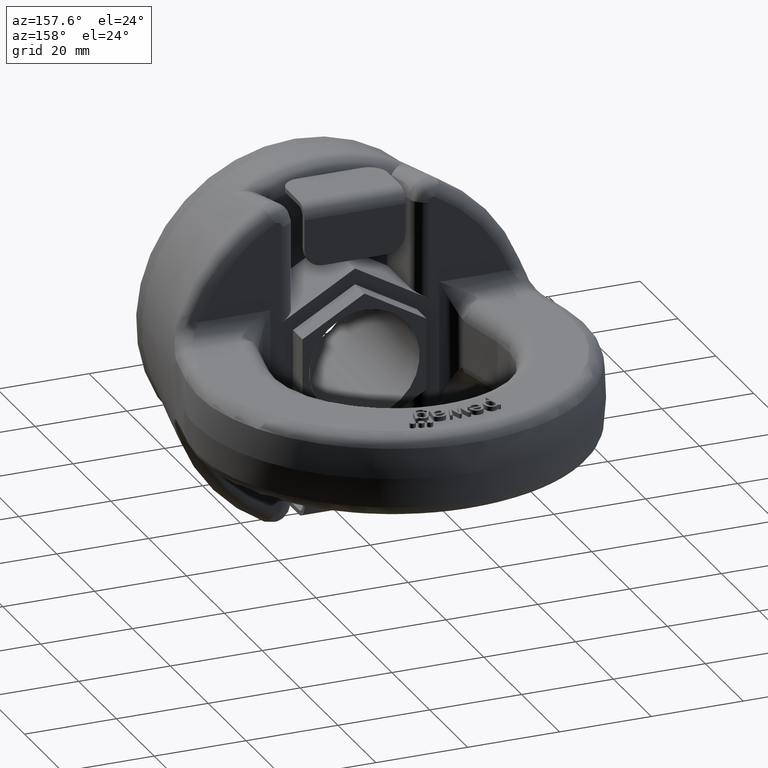
[diagram: clean part render]
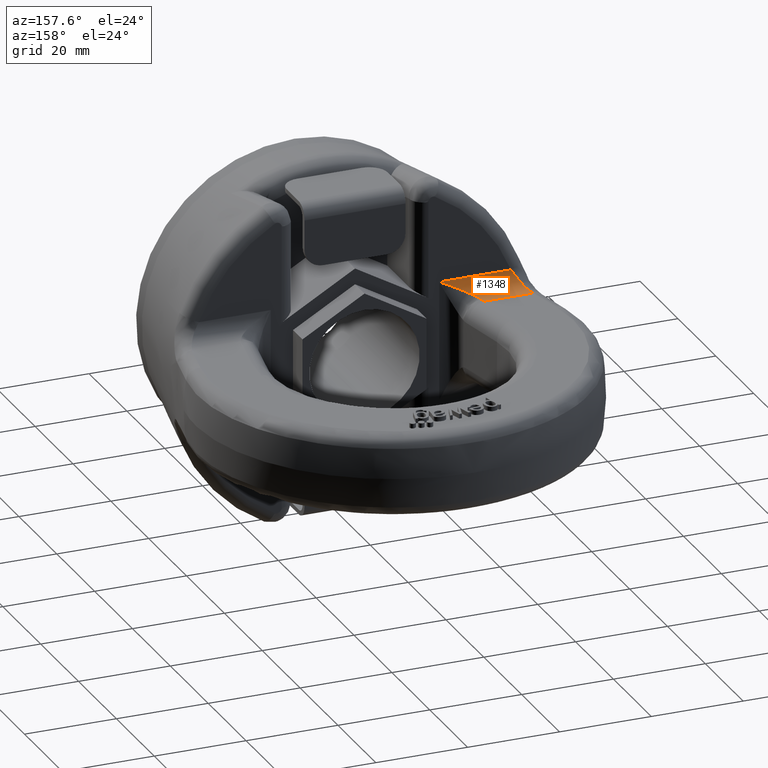
[diagram: same view with one face highlighted and labeled with its STEP entity id]
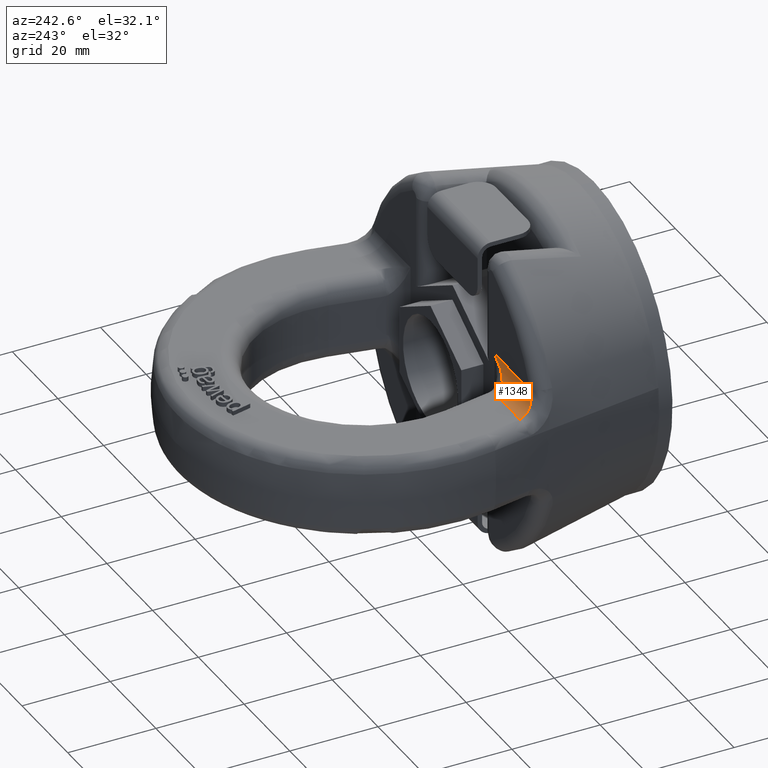
[diagram: same view with one face highlighted and labeled with its STEP entity id]
A machine part, auxiliary view. The second image highlights one B-rep face of the part: STEP entity #1348.
A second angle (auxiliary view) of the same face is appended — the face is thin or edge-on in the first view.
In plain terms, the highlighted cylindrical surface (edge-blend (fillet) strip) has radius 4 mm, axis along (-1, 0, 0).
Its self-contained STEP definition (entity closure, byte-faithful):
#1058=ELLIPSE('',#5160,8.94427190999916,4.);
#1059=ELLIPSE('',#5161,4.27624824604156,4.);
#1073=CYLINDRICAL_SURFACE('',#5162,4.);
#1123=FACE_OUTER_BOUND('',#1867,.T.);
#1348=ADVANCED_FACE('',(#1123),#1073,.F.);
#1867=EDGE_LOOP('',(#2899,#2900,#2901,#2902,#2903));
#2122=LINE('',#6418,#2392);
#2152=LINE('',#6772,#2422);
#2392=VECTOR('',#5405,1.);
#2422=VECTOR('',#5487,1.);
#2899=ORIENTED_EDGE('',*,*,#4366,.F.);
#2900=ORIENTED_EDGE('',*,*,#4413,.T.);
#2901=ORIENTED_EDGE('',*,*,#4414,.T.);
#2902=ORIENTED_EDGE('',*,*,#4292,.F.);
#2903=ORIENTED_EDGE('',*,*,#4415,.T.);
#3908=VERTEX_POINT('',#6417);
#3909=VERTEX_POINT('',#6419);
#3977=VERTEX_POINT('',#6771);
#3978=VERTEX_POINT('',#6773);
#4007=VERTEX_POINT('',#6985);
#4292=EDGE_CURVE('',#3908,#3909,#2122,.T.);
#4366=EDGE_CURVE('',#3977,#3978,#2152,.T.);
#4413=EDGE_CURVE('',#3977,#4007,#1058,.T.);
#4414=EDGE_CURVE('',#4007,#3909,#1059,.T.);
#4415=EDGE_CURVE('',#3908,#3978,#4888,.T.);
#4888=B_SPLINE_CURVE_WITH_KNOTS('',3,(#6987,#6988,#6989,#6990,#6991,#6992,
#6993,#6994,#6995,#6996,#6997,#6998,#6999,#7000,#7001,#7002),
 .UNSPECIFIED.,.F.,.F.,(4,3,3,3,3,4),(0.,0.207557435527554,0.418547779537088,
0.63726019298535,0.865579065101321,1.),.UNSPECIFIED.);
#5160=AXIS2_PLACEMENT_3D('',#6984,#5570,#5571);
#5161=AXIS2_PLACEMENT_3D('',#6986,#5572,#5573);
#5162=AXIS2_PLACEMENT_3D('',#7003,#5574,#5575);
#5405=DIRECTION('',(1.,0.,0.));
#5487=DIRECTION('',(-1.,0.,0.));
#5570=DIRECTION('',(0.447213595499958,0.,-0.894427190999916));
#5571=DIRECTION('',(-0.894427190999916,0.,-0.447213595499958));
#5572=DIRECTION('',(0.93539938980454,0.353592960271122,0.));
#5573=DIRECTION('',(-0.353592960271122,0.93539938980454,0.));
#5574=DIRECTION('',(-1.,0.,0.));
#5575=DIRECTION('',(0.,0.,1.));
#6417=CARTESIAN_POINT('',(-37.2033753173091,36.,9.00000000000001));
#6418=CARTESIAN_POINT('',(45.,36.,9.00000000000001));
#6419=CARTESIAN_POINT('',(-26.4893418181224,36.,9.00000000000001));
#6771=CARTESIAN_POINT('',(-18.3477019917868,32.,13.));
#6772=CARTESIAN_POINT('',(-21.6624962668686,32.,13.));
#6773=CARTESIAN_POINT('',(-33.9577101944822,32.,13.));
#6984=CARTESIAN_POINT('',(-18.3477019917868,36.,13.));
#6985=CARTESIAN_POINT('',(-26.2085262686089,35.2571269137792,9.06958786158897));
#6986=CARTESIAN_POINT('',(-26.4893418181224,36.,13.));
#6987=CARTESIAN_POINT('',(-37.2033753173091,36.,9.00000000000001));
#6988=CARTESIAN_POINT('',(-37.0482719688728,35.5370534752903,9.00000000000001));
#6989=CARTESIAN_POINT('',(-36.8709488746228,35.0752436659173,9.08240235612288));
#6990=CARTESIAN_POINT('',(-36.6821872347188,34.6513364925919,9.23421897293726));
#6991=CARTESIAN_POINT('',(-36.4901840300306,34.220149648643,9.38864270525976));
#6992=CARTESIAN_POINT('',(-36.281002892616,33.8171799055478,9.6186525749359));
#6993=CARTESIAN_POINT('',(-36.0609573510165,33.4721416104325,9.9000109738431));
#6994=CARTESIAN_POINT('',(-35.8328348897617,33.1144384525465,10.1916968220856));
#6995=CARTESIAN_POINT('',(-35.587047225603,32.8104565813313,10.5451821782961));
#6996=CARTESIAN_POINT('',(-35.3306212455861,32.5790837060234,10.9269993464532));
#6997=CARTESIAN_POINT('',(-35.0628973505298,32.3375167345966,11.3256390609302));
#6998=CARTESIAN_POINT('',(-34.777133883021,32.169139577501,11.7637813775493));
#6999=CARTESIAN_POINT('',(-34.4852156608011,32.0795628523784,12.2061659042667));
#7000=CARTESIAN_POINT('',(-34.3120795689199,32.0264350825759,12.4685432491345));
#7001=CARTESIAN_POINT('',(-34.135156566724,32.,12.7351352754439));
#7002=CARTESIAN_POINT('',(-33.9577101944822,32.,13.));
#7003=CARTESIAN_POINT('',(-21.6624962668686,36.,13.));